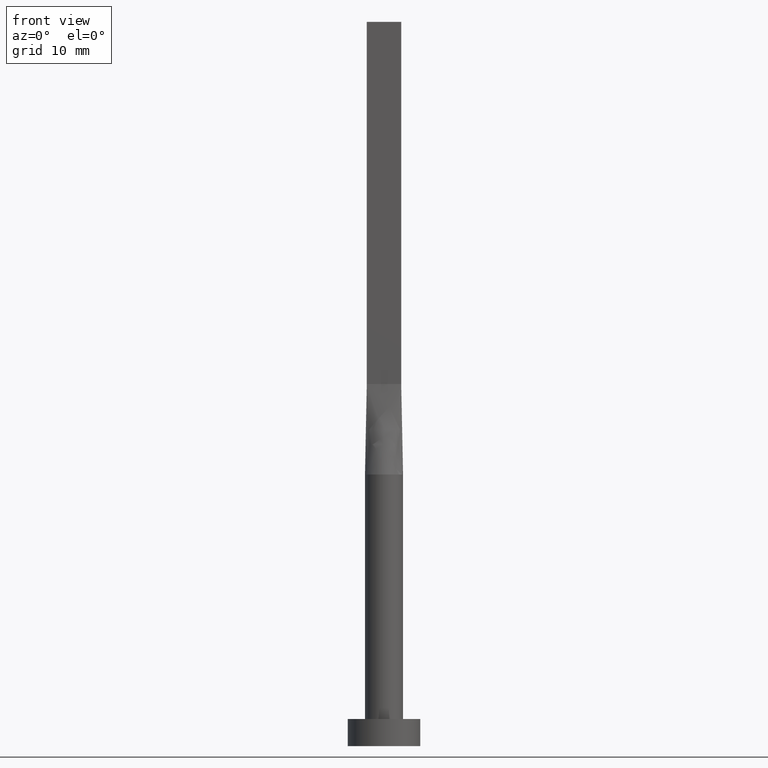
[diagram: clean part render]
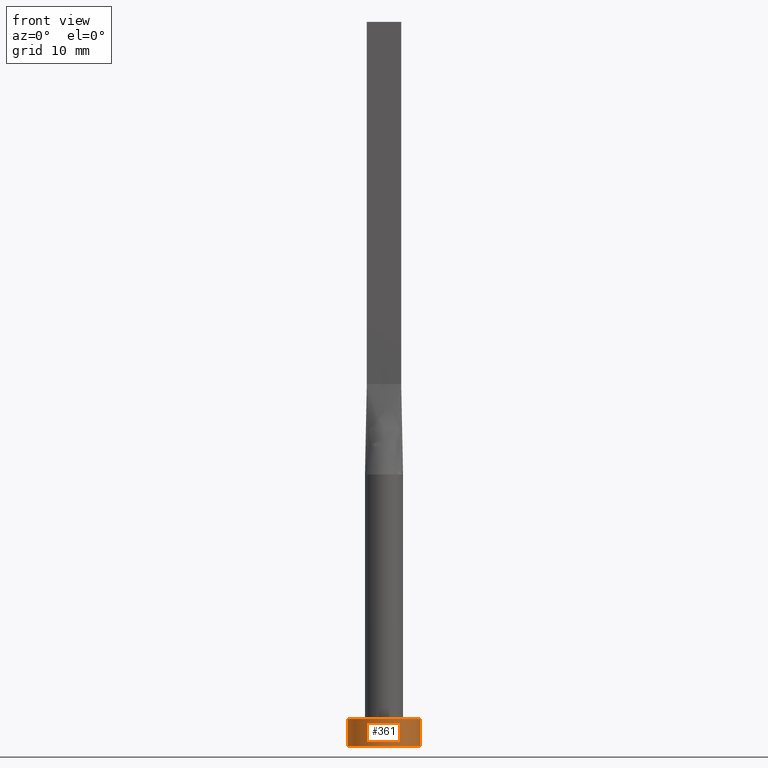
[diagram: same view with one face highlighted and labeled with its STEP entity id]
A machine part, front view. The second image highlights one B-rep face of the part: STEP entity #361.
In plain terms, the highlighted cylindrical surface (edge-blend (fillet) strip) has radius 4 mm, axis along (-0, -0, -1).
Its self-contained STEP definition (entity closure, byte-faithful):
#3 = AXIS2_PLACEMENT_3D ( 'NONE', #362, #480, #24 ) ;
#4 = EDGE_CURVE ( 'NONE', #156, #260, #410, .T. ) ;
#6 = CARTESIAN_POINT ( 'NONE',  ( 4.000000000000000000, 4.898587196589412829E-16, 0.000000000000000000 ) ) ;
#24 = DIRECTION ( 'NONE',  ( -1.000000000000000000, 0.000000000000000000, 0.000000000000000000 ) ) ;
#45 = CARTESIAN_POINT ( 'NONE',  ( 4.000000000000000000, 4.898587196589412829E-16, 3.000000000000000000 ) ) ;
#61 = CARTESIAN_POINT ( 'NONE',  ( 4.000000000000000000, 4.898587196589412829E-16, 3.000000000000000000 ) ) ;
#62 = ORIENTED_EDGE ( 'NONE', *, *, #492, .F. ) ;
#73 = CYLINDRICAL_SURFACE ( 'NONE', #3, 4.000000000000000000 ) ;
#139 = AXIS2_PLACEMENT_3D ( 'NONE', #205, #338, #298 ) ;
#156 = VERTEX_POINT ( 'NONE', #61 ) ;
#166 = EDGE_CURVE ( 'NONE', #272, #260, #579, .T. ) ;
#173 = ORIENTED_EDGE ( 'NONE', *, *, #573, .T. ) ;
#176 = VECTOR ( 'NONE', #477, 1000.000000000000000 ) ;
#203 = ORIENTED_EDGE ( 'NONE', *, *, #4, .F. ) ;
#205 = CARTESIAN_POINT ( 'NONE',  ( 0.000000000000000000, 0.000000000000000000, 3.000000000000000000 ) ) ;
#260 = VERTEX_POINT ( 'NONE', #6 ) ;
#272 = VERTEX_POINT ( 'NONE', #389 ) ;
#295 = VERTEX_POINT ( 'NONE', #339 ) ;
#298 = DIRECTION ( 'NONE',  ( 1.000000000000000000, 0.000000000000000000, 0.000000000000000000 ) ) ;
#319 = AXIS2_PLACEMENT_3D ( 'NONE', #554, #380, #330 ) ;
#326 = EDGE_LOOP ( 'NONE', ( #203, #62, #173, #348 ) ) ;
#330 = DIRECTION ( 'NONE',  ( 1.000000000000000000, 0.000000000000000000, 0.000000000000000000 ) ) ;
#338 = DIRECTION ( 'NONE',  ( 0.000000000000000000, 0.000000000000000000, 1.000000000000000000 ) ) ;
#339 = CARTESIAN_POINT ( 'NONE',  ( -4.000000000000000000, 0.000000000000000000, 3.000000000000000000 ) ) ;
#348 = ORIENTED_EDGE ( 'NONE', *, *, #166, .T. ) ;
#361 = ADVANCED_FACE ( 'NONE', ( #485 ), #73, .T. ) ;
#362 = CARTESIAN_POINT ( 'NONE',  ( 0.000000000000000000, 0.000000000000000000, 3.000000000000000000 ) ) ;
#380 = DIRECTION ( 'NONE',  ( 0.000000000000000000, 0.000000000000000000, 1.000000000000000000 ) ) ;
#389 = CARTESIAN_POINT ( 'NONE',  ( -4.000000000000000000, 0.000000000000000000, 0.000000000000000000 ) ) ;
#410 = LINE ( 'NONE', #45, #176 ) ;
#416 = CIRCLE ( 'NONE', #139, 4.000000000000000000 ) ;
#424 = VECTOR ( 'NONE', #495, 1000.000000000000000 ) ;
#477 = DIRECTION ( 'NONE',  ( -0.000000000000000000, -0.000000000000000000, -1.000000000000000000 ) ) ;
#480 = DIRECTION ( 'NONE',  ( -0.000000000000000000, -0.000000000000000000, -1.000000000000000000 ) ) ;
#485 = FACE_OUTER_BOUND ( 'NONE', #326, .T. ) ;
#487 = CARTESIAN_POINT ( 'NONE',  ( -4.000000000000000000, 0.000000000000000000, 3.000000000000000000 ) ) ;
#492 = EDGE_CURVE ( 'NONE', #295, #156, #416, .T. ) ;
#495 = DIRECTION ( 'NONE',  ( -0.000000000000000000, -0.000000000000000000, -1.000000000000000000 ) ) ;
#528 = LINE ( 'NONE', #487, #424 ) ;
#554 = CARTESIAN_POINT ( 'NONE',  ( 0.000000000000000000, 0.000000000000000000, 0.000000000000000000 ) ) ;
#573 = EDGE_CURVE ( 'NONE', #295, #272, #528, .T. ) ;
#579 = CIRCLE ( 'NONE', #319, 4.000000000000000000 ) ;